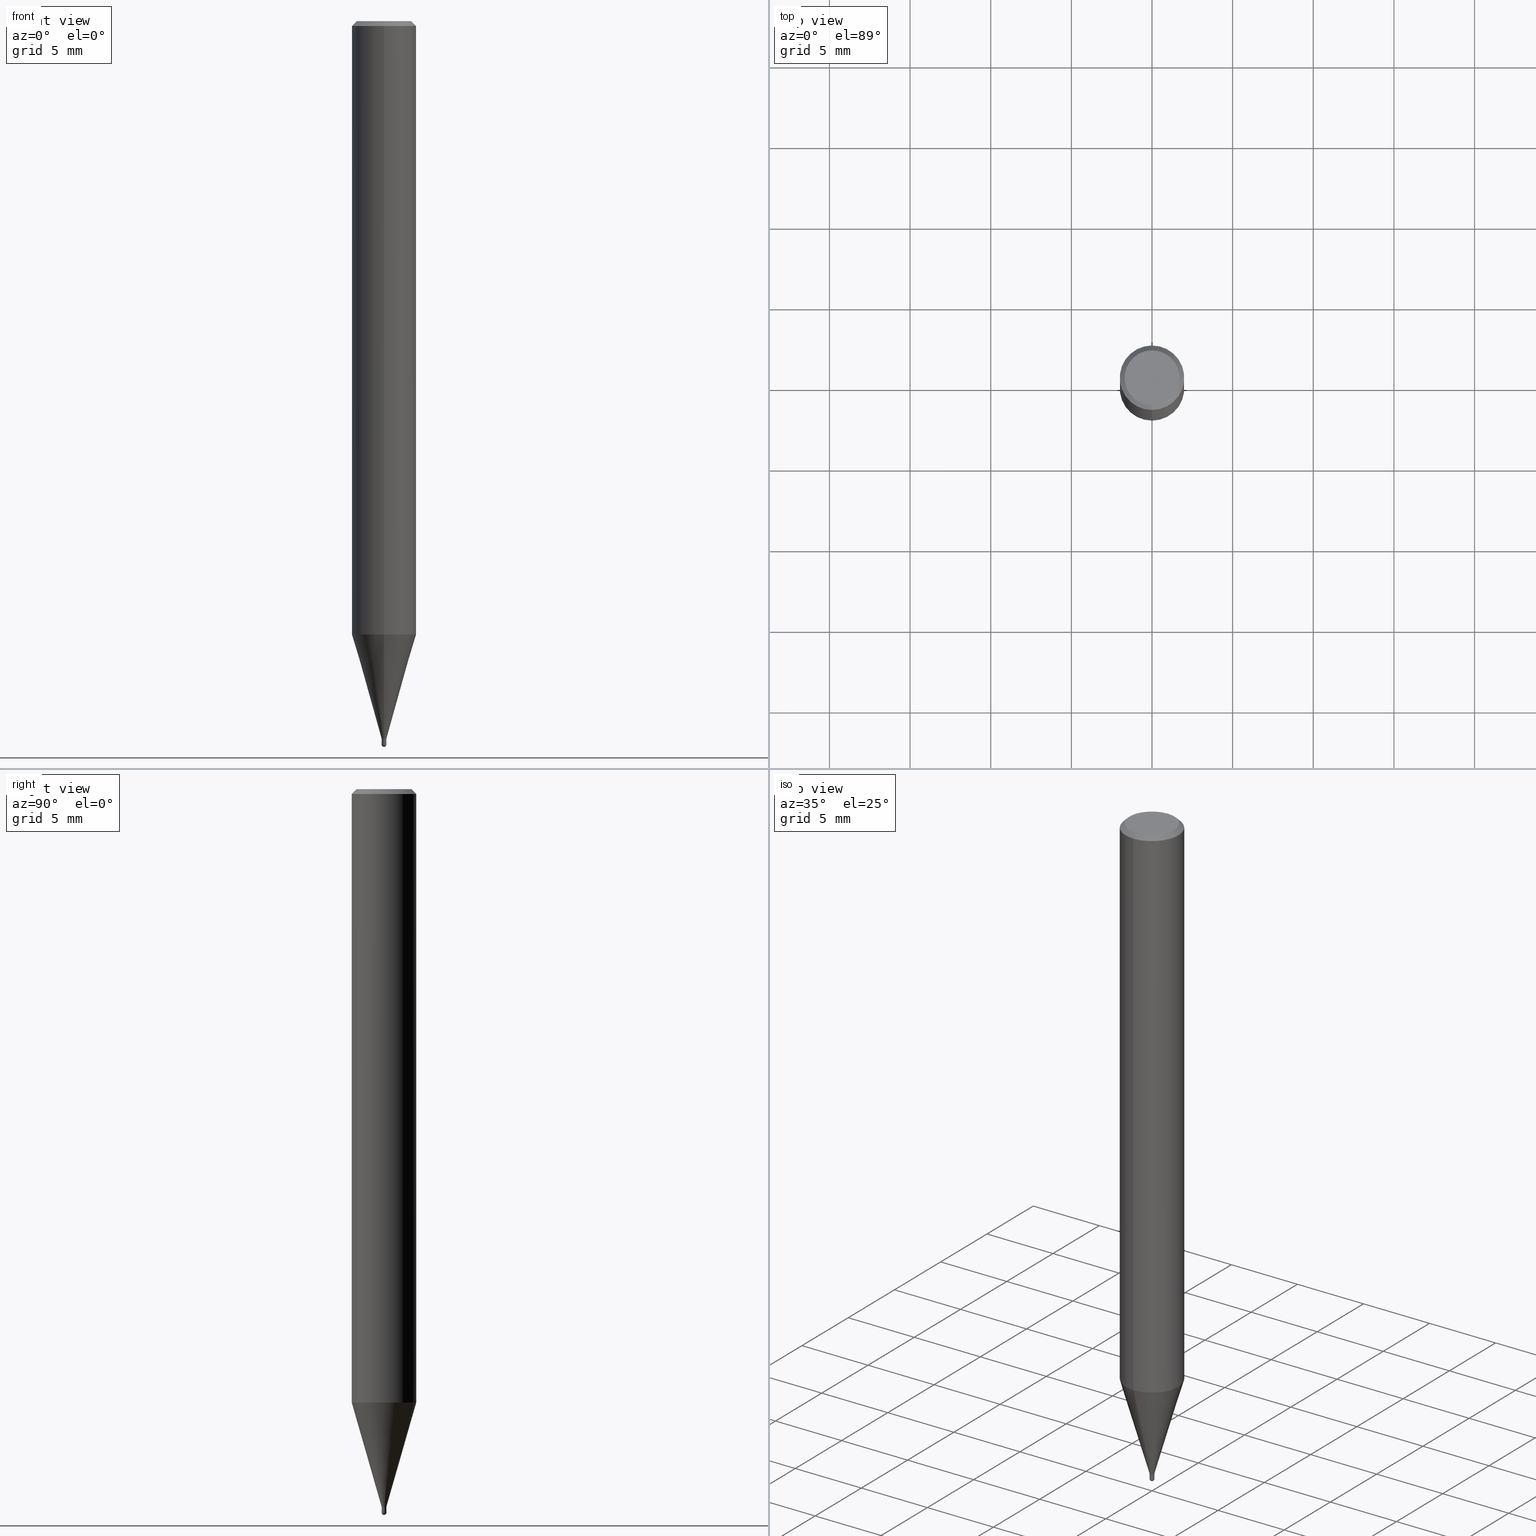
[diagram: canonical four-view strip — front | top / right | iso, engineering-drawing reading convention]
A machine part, canonical four-view strip (front | top / right | iso — engineering-drawing reading convention). The complete STEP part file that produces these views, byte-faithful:
ISO-10303-21;
HEADER;
FILE_DESCRIPTION(('no description'),'unknown implementation level');
FILE_NAME('HSLB2003-005-Huellk.stp','  ',('CIMSOURCE GmbH'),('CADClick - KiM GmbH - www.kimweb.de'),'unknown preprocess','ACIS','unknown authorization');
FILE_SCHEMA(('automotive_design'));
ENDSEC;
DATA;
#1=MECHANICAL_DESIGN_GEOMETRIC_PRESENTATION_REPRESENTATION(' ',(#14,#15,#16,#17,#18,#19,#20,#21,#22,#23,#24,#25,#26,#27,#28,#29,#30,#31,#32,#33,#34,#35,#36,#37,#38,#39,#40,#41,#42,#43,#44,#45,#46,#47,#48,#49,#50,#51,#52,#53,#54,#55,#56,#57,#58,#59,#60,#61,#62,#63,#64,#65,#66,#67,#68,#69,#70,#71,#72,#73,#74),#10);
#2=PRODUCT_DEFINITION_CONTEXT('',#75,'design');
#3=APPLICATION_PROTOCOL_DEFINITION('INTERNATIONAL STANDARD','automotive_design',1994,#75);
#4=PRODUCT_CATEGORY_RELATIONSHIP('NONE','NONE',#76,#77);
#5=SHAPE_DEFINITION_REPRESENTATION(#78,#79);
#6=PRODUCT_DEFINITION_CONTEXT('',#80,'design');
#7=APPLICATION_PROTOCOL_DEFINITION('INTERNATIONAL STANDARD','automotive_design',1994,#80);
#8=PRODUCT_CATEGORY_RELATIONSHIP('NONE','NONE',#81,#82);
#9=SHAPE_DEFINITION_REPRESENTATION(#83,#84);
#10= (GEOMETRIC_REPRESENTATION_CONTEXT(3)GLOBAL_UNCERTAINTY_ASSIGNED_CONTEXT((#87))GLOBAL_UNIT_ASSIGNED_CONTEXT((#89,#90,#91))REPRESENTATION_CONTEXT('NONE','WORKSPACE'));
#14=STYLED_ITEM('',(#93),#94);
#15=STYLED_ITEM('',(#95),#96);
#16=STYLED_ITEM('',(#97),#98);
#17=STYLED_ITEM('',(#99),#100);
#18=STYLED_ITEM('',(#101),#102);
#19=STYLED_ITEM('',(#103),#104);
#20=STYLED_ITEM('',(#105),#106);
#21=STYLED_ITEM('',(#107),#108);
#22=STYLED_ITEM('',(#109),#110);
#23=STYLED_ITEM('',(#111),#112);
#24=STYLED_ITEM('',(#113),#114);
#25=STYLED_ITEM('',(#115),#116);
#26=STYLED_ITEM('',(#117),#118);
#27=STYLED_ITEM('',(#119),#120);
#28=STYLED_ITEM('',(#121),#122);
#29=STYLED_ITEM('',(#123),#124);
#30=STYLED_ITEM('',(#125),#126);
#31=STYLED_ITEM('',(#127),#128);
#32=STYLED_ITEM('',(#129),#130);
#33=STYLED_ITEM('',(#131),#132);
#34=STYLED_ITEM('',(#133),#134);
#35=STYLED_ITEM('',(#135),#136);
#36=STYLED_ITEM('',(#137),#138);
#37=STYLED_ITEM('',(#139),#140);
#38=STYLED_ITEM('',(#141),#142);
#39=STYLED_ITEM('',(#143),#144);
#40=STYLED_ITEM('',(#145),#146);
#41=STYLED_ITEM('',(#147),#148);
#42=STYLED_ITEM('',(#149),#150);
#43=STYLED_ITEM('',(#151),#152);
#44=STYLED_ITEM('',(#153),#154);
#45=STYLED_ITEM('',(#155),#156);
#46=STYLED_ITEM('',(#157),#158);
#47=STYLED_ITEM('',(#159),#160);
#48=STYLED_ITEM('',(#161),#162);
#49=STYLED_ITEM('',(#163),#164);
#50=STYLED_ITEM('',(#165),#166);
#51=STYLED_ITEM('',(#167),#168);
#52=STYLED_ITEM('',(#169),#170);
#53=STYLED_ITEM('',(#171),#172);
#54=STYLED_ITEM('',(#173),#174);
#55=STYLED_ITEM('',(#175),#176);
#56=STYLED_ITEM('',(#177),#178);
#57=STYLED_ITEM('',(#179),#180);
#58=STYLED_ITEM('',(#181),#182);
#59=STYLED_ITEM('',(#183),#184);
#60=STYLED_ITEM('',(#185),#186);
#61=STYLED_ITEM('',(#187),#188);
#62=STYLED_ITEM('',(#189),#190);
#63=STYLED_ITEM('',(#191),#192);
#64=STYLED_ITEM('',(#193),#194);
#65=STYLED_ITEM('',(#195),#196);
#66=STYLED_ITEM('',(#197),#198);
#67=STYLED_ITEM('',(#199),#200);
#68=STYLED_ITEM('',(#201),#202);
#69=STYLED_ITEM('',(#203),#204);
#70=STYLED_ITEM('',(#205),#206);
#71=STYLED_ITEM('',(#207),#208);
#72=STYLED_ITEM('',(#209),#210);
#73=STYLED_ITEM('',(#211),#212);
#74=STYLED_ITEM('',(#213),#214);
#75=APPLICATION_CONTEXT(' ');
#76=PRODUCT_CATEGORY('part','NONE');
#77=PRODUCT_RELATED_PRODUCT_CATEGORY('detail',' ',(#215));
#78=PRODUCT_DEFINITION_SHAPE('NONE','NONE',#216);
#79=ADVANCED_BREP_SHAPE_REPRESENTATION('1',(#170,#217),#10);
#80=APPLICATION_CONTEXT(' ');
#81=PRODUCT_CATEGORY('part','NONE');
#82=PRODUCT_RELATED_PRODUCT_CATEGORY('detail',' ',(#218));
#83=PRODUCT_DEFINITION_SHAPE('NONE','NONE',#219);
#84=ADVANCED_BREP_SHAPE_REPRESENTATION('2',(#164,#220),#10);
#87=UNCERTAINTY_MEASURE_WITH_UNIT(LENGTH_MEASURE(1.0E-006),#89,'','');
#89= (CONVERSION_BASED_UNIT('MILLIMETRE',#223)LENGTH_UNIT()NAMED_UNIT(#226));
#90= (NAMED_UNIT(#228)PLANE_ANGLE_UNIT()SI_UNIT($,.RADIAN.));
#91= (NAMED_UNIT(#228)SOLID_ANGLE_UNIT()SI_UNIT($,.STERADIAN.));
#93=PRESENTATION_STYLE_ASSIGNMENT((#234));
#94=VERTEX_POINT('',#235);
#95=PRESENTATION_STYLE_ASSIGNMENT((#236));
#96=VERTEX_POINT('',#237);
#97=PRESENTATION_STYLE_ASSIGNMENT((#238));
#98=EDGE_CURVE('',#154,#96,#239,.T.);
#99=PRESENTATION_STYLE_ASSIGNMENT((#240));
#100=EDGE_CURVE('',#96,#154,#241,.T.);
#101=PRESENTATION_STYLE_ASSIGNMENT((#242));
#102=VERTEX_POINT('',#243);
#103=PRESENTATION_STYLE_ASSIGNMENT((#244));
#104=EDGE_CURVE('',#134,#126,#245,.T.);
#105=PRESENTATION_STYLE_ASSIGNMENT((#246));
#106=EDGE_CURVE('',#208,#154,#247,.T.);
#107=PRESENTATION_STYLE_ASSIGNMENT((#248));
#108=ADVANCED_FACE('',(#249),#250,.T.);
#109=PRESENTATION_STYLE_ASSIGNMENT((#251));
#110=EDGE_CURVE('',#214,#182,#252,.T.);
#111=PRESENTATION_STYLE_ASSIGNMENT((#253));
#112=VERTEX_POINT('',#254);
#113=PRESENTATION_STYLE_ASSIGNMENT((#255));
#114=ADVANCED_FACE('',(#256),#257,.T.);
#115=PRESENTATION_STYLE_ASSIGNMENT((#258));
#116=VERTEX_POINT('',#259);
#117=PRESENTATION_STYLE_ASSIGNMENT((#260));
#118=ADVANCED_FACE('',(#261),#262,.T.);
#119=PRESENTATION_STYLE_ASSIGNMENT((#263));
#120=EDGE_CURVE('',#94,#180,#264,.T.);
#121=PRESENTATION_STYLE_ASSIGNMENT((#265));
#122=EDGE_CURVE('',#166,#112,#266,.T.);
#123=PRESENTATION_STYLE_ASSIGNMENT((#267));
#124=EDGE_CURVE('',#116,#128,#268,.T.);
#125=PRESENTATION_STYLE_ASSIGNMENT((#269));
#126=VERTEX_POINT('',#270);
#127=PRESENTATION_STYLE_ASSIGNMENT((#271));
#128=VERTEX_POINT('',#272);
#129=PRESENTATION_STYLE_ASSIGNMENT((#273));
#130=ADVANCED_FACE('',(#274),#275,.T.);
#131=PRESENTATION_STYLE_ASSIGNMENT((#276));
#132=EDGE_CURVE('',#166,#180,#277,.T.);
#133=PRESENTATION_STYLE_ASSIGNMENT((#278));
#134=VERTEX_POINT('',#279);
#135=PRESENTATION_STYLE_ASSIGNMENT((#280));
#136=EDGE_CURVE('',#208,#194,#281,.T.);
#137=PRESENTATION_STYLE_ASSIGNMENT((#282));
#138=ADVANCED_FACE('',(#283),#284,.T.);
#139=PRESENTATION_STYLE_ASSIGNMENT((#285));
#140=ADVANCED_FACE('',(#286),#287,.T.);
#141=PRESENTATION_STYLE_ASSIGNMENT((#288));
#142=EDGE_CURVE('',#134,#160,#289,.T.);
#143=PRESENTATION_STYLE_ASSIGNMENT((#290));
#144=EDGE_CURVE('',#112,#166,#291,.T.);
#145=PRESENTATION_STYLE_ASSIGNMENT((#292));
#146=EDGE_CURVE('',#180,#94,#293,.T.);
#147=PRESENTATION_STYLE_ASSIGNMENT((#294));
#148=EDGE_CURVE('',#102,#160,#295,.T.);
#149=PRESENTATION_STYLE_ASSIGNMENT((#296));
#150=EDGE_CURVE('',#102,#126,#297,.T.);
#151=PRESENTATION_STYLE_ASSIGNMENT((#298));
#152=EDGE_CURVE('',#112,#128,#299,.T.);
#153=PRESENTATION_STYLE_ASSIGNMENT((#300));
#154=VERTEX_POINT('',#301);
#155=PRESENTATION_STYLE_ASSIGNMENT((#302));
#156=ADVANCED_FACE('',(#303),#304,.T.);
#157=PRESENTATION_STYLE_ASSIGNMENT((#305));
#158=EDGE_CURVE('',#182,#214,#306,.T.);
#159=PRESENTATION_STYLE_ASSIGNMENT((#307));
#160=VERTEX_POINT('',#308);
#161=PRESENTATION_STYLE_ASSIGNMENT((#309));
#162=ADVANCED_FACE('',(#310),#311,.T.);
#163=PRESENTATION_STYLE_ASSIGNMENT((#312));
#164=MANIFOLD_SOLID_BREP('2',#313);
#165=PRESENTATION_STYLE_ASSIGNMENT((#314));
#166=VERTEX_POINT('',#315);
#167=PRESENTATION_STYLE_ASSIGNMENT((#316));
#168=ADVANCED_FACE('',(#317),#318,.T.);
#169=PRESENTATION_STYLE_ASSIGNMENT((#319));
#170=MANIFOLD_SOLID_BREP('1',#320);
#171=PRESENTATION_STYLE_ASSIGNMENT((#321));
#172=EDGE_CURVE('',#194,#208,#322,.T.);
#173=PRESENTATION_STYLE_ASSIGNMENT((#323));
#174=ADVANCED_FACE('',(#324,#325),#326,.T.);
#175=PRESENTATION_STYLE_ASSIGNMENT((#327));
#176=ADVANCED_FACE('',(#328),#329,.T.);
#177=PRESENTATION_STYLE_ASSIGNMENT((#330));
#178=EDGE_CURVE('',#116,#166,#331,.T.);
#179=PRESENTATION_STYLE_ASSIGNMENT((#332));
#180=VERTEX_POINT('',#333);
#181=PRESENTATION_STYLE_ASSIGNMENT((#334));
#182=VERTEX_POINT('',#335);
#183=PRESENTATION_STYLE_ASSIGNMENT((#336));
#184=EDGE_CURVE('',#134,#160,#337,.T.);
#185=PRESENTATION_STYLE_ASSIGNMENT((#338));
#186=ADVANCED_FACE('',(#339),#340,.T.);
#187=PRESENTATION_STYLE_ASSIGNMENT((#341));
#188=EDGE_CURVE('',#94,#112,#342,.T.);
#189=PRESENTATION_STYLE_ASSIGNMENT((#343));
#190=ADVANCED_FACE('',(#344),#345,.T.);
#191=PRESENTATION_STYLE_ASSIGNMENT((#346));
#192=ADVANCED_FACE('',(#347),#348,.T.);
#193=PRESENTATION_STYLE_ASSIGNMENT((#349));
#194=VERTEX_POINT('',#350);
#195=PRESENTATION_STYLE_ASSIGNMENT((#351));
#196=EDGE_CURVE('',#154,#214,#352,.T.);
#197=PRESENTATION_STYLE_ASSIGNMENT((#353));
#198=EDGE_CURVE('',#128,#116,#354,.T.);
#199=PRESENTATION_STYLE_ASSIGNMENT((#355));
#200=EDGE_CURVE('',#160,#134,#356,.T.);
#201=PRESENTATION_STYLE_ASSIGNMENT((#357));
#202=ADVANCED_FACE('',(#358),#359,.T.);
#203=PRESENTATION_STYLE_ASSIGNMENT((#360));
#204=ADVANCED_FACE('',(#361),#362,.T.);
#205=PRESENTATION_STYLE_ASSIGNMENT((#363));
#206=EDGE_CURVE('',#126,#102,#364,.T.);
#207=PRESENTATION_STYLE_ASSIGNMENT((#365));
#208=VERTEX_POINT('',#366);
#209=PRESENTATION_STYLE_ASSIGNMENT((#367));
#210=EDGE_CURVE('',#182,#96,#368,.T.);
#211=PRESENTATION_STYLE_ASSIGNMENT((#369));
#212=EDGE_CURVE('',#96,#194,#370,.T.);
#213=PRESENTATION_STYLE_ASSIGNMENT((#371));
#214=VERTEX_POINT('',#372);
#215=PRODUCT('1','1','PART-1-DESC',(#373));
#216=PRODUCT_DEFINITION('NONE','NONE',#374,#2);
#217=AXIS2_PLACEMENT_3D('',#375,#376,#377);
#218=PRODUCT('2','2','PART-2-DESC',(#378));
#219=PRODUCT_DEFINITION('NONE','NONE',#379,#6);
#220=AXIS2_PLACEMENT_3D('',#380,#381,#382);
#223=LENGTH_MEASURE_WITH_UNIT(LENGTH_MEASURE(1.0),#383);
#226=DIMENSIONAL_EXPONENTS(1.0,0.0,0.0,0.0,0.0,0.0,0.0);
#228=DIMENSIONAL_EXPONENTS(0.0,0.0,0.0,0.0,0.0,0.0,0.0);
#234=POINT_STYLE(' ',#384,POSITIVE_LENGTH_MEASURE(1.0E-006),#385);
#235=CARTESIAN_POINT('',(0.0,1.99995,-38.031));
#236=POINT_STYLE(' ',#386,POSITIVE_LENGTH_MEASURE(1.0E-006),#387);
#237=CARTESIAN_POINT('',(2.44921270764475E-016,-2.0,-0.299999999999997));
#238=CURVE_STYLE('',#388,POSITIVE_LENGTH_MEASURE(1.0E-006),#389);
#239=CIRCLE('',#390,2.0);
#240=CURVE_STYLE('',#391,POSITIVE_LENGTH_MEASURE(1.0E-006),#392);
#241=CIRCLE('',#393,2.0);
#242=POINT_STYLE(' ',#394,POSITIVE_LENGTH_MEASURE(1.0E-006),#395);
#243=CARTESIAN_POINT('',(0.0,0.1499,-44.76));
#244=CURVE_STYLE('',#396,POSITIVE_LENGTH_MEASURE(1.0E-006),#397);
#245=LINE('',#398,#399);
#246=CURVE_STYLE('',#400,POSITIVE_LENGTH_MEASURE(1.0E-006),#401);
#247=LINE('',#402,#403);
#248=SURFACE_STYLE_USAGE(.BOTH.,#404);
#249=FACE_OUTER_BOUND('',#405,.T.);
#250=CONICAL_SURFACE('',#406,1.85,0.785398163397453);
#251=CURVE_STYLE('',#407,POSITIVE_LENGTH_MEASURE(1.0E-006),#408);
#252=CIRCLE('',#409,2.0);
#253=POINT_STYLE(' ',#410,POSITIVE_LENGTH_MEASURE(1.0E-006),#411);
#254=CARTESIAN_POINT('',(0.0,0.14495,-44.5));
#255=SURFACE_STYLE_USAGE(.BOTH.,#412);
#256=FACE_OUTER_BOUND('',#413,.T.);
#257=SPHERICAL_SURFACE('',#414,0.15);
#258=POINT_STYLE(' ',#415,POSITIVE_LENGTH_MEASURE(1.0E-006),#416);
#259=CARTESIAN_POINT('',(1.77506690986554E-017,-0.14495,-44.76));
#260=SURFACE_STYLE_USAGE(.BOTH.,#417);
#261=FACE_OUTER_BOUND('',#418,.T.);
#262=PLANE('',#419);
#263=CURVE_STYLE('',#420,POSITIVE_LENGTH_MEASURE(1.0E-006),#421);
#264=CIRCLE('',#422,1.99995);
#265=CURVE_STYLE('',#423,POSITIVE_LENGTH_MEASURE(1.0E-006),#424);
#266=CIRCLE('',#425,0.14495);
#267=CURVE_STYLE('',#426,POSITIVE_LENGTH_MEASURE(1.0E-006),#427);
#268=CIRCLE('',#428,0.14495);
#269=POINT_STYLE(' ',#429,POSITIVE_LENGTH_MEASURE(1.0E-006),#430);
#270=CARTESIAN_POINT('',(1.83568492437974E-017,-0.1499,-44.76));
#271=POINT_STYLE(' ',#431,POSITIVE_LENGTH_MEASURE(1.0E-006),#432);
#272=CARTESIAN_POINT('',(0.0,0.14495,-44.76));
#273=SURFACE_STYLE_USAGE(.BOTH.,#433);
#274=FACE_OUTER_BOUND('',#434,.T.);
#275=PLANE('',#435);
#276=CURVE_STYLE('',#436,POSITIVE_LENGTH_MEASURE(1.0E-006),#437);
#277=LINE('',#438,#439);
#278=POINT_STYLE(' ',#440,POSITIVE_LENGTH_MEASURE(1.0E-006),#441);
#279=CARTESIAN_POINT('',(1.83690953073356E-017,-0.15,-44.85));
#280=CURVE_STYLE('',#442,POSITIVE_LENGTH_MEASURE(1.0E-006),#443);
#281=CIRCLE('',#444,1.7);
#282=SURFACE_STYLE_USAGE(.BOTH.,#445);
#283=FACE_OUTER_BOUND('',#446,.T.);
#284=CYLINDRICAL_SURFACE('',#447,2.0);
#285=SURFACE_STYLE_USAGE(.BOTH.,#448);
#286=FACE_OUTER_BOUND('',#449,.T.);
#287=PLANE('',#450);
#288=CURVE_STYLE('',#451,POSITIVE_LENGTH_MEASURE(1.0E-006),#452);
#289=CIRCLE('',#453,0.15);
#290=CURVE_STYLE('',#454,POSITIVE_LENGTH_MEASURE(1.0E-006),#455);
#291=CIRCLE('',#456,0.14495);
#292=CURVE_STYLE('',#457,POSITIVE_LENGTH_MEASURE(1.0E-006),#458);
#293=CIRCLE('',#459,1.99995);
#294=CURVE_STYLE('',#460,POSITIVE_LENGTH_MEASURE(1.0E-006),#461);
#295=LINE('',#462,#463);
#296=CURVE_STYLE('',#464,POSITIVE_LENGTH_MEASURE(1.0E-006),#465);
#297=CIRCLE('',#466,0.1499);
#298=CURVE_STYLE('',#467,POSITIVE_LENGTH_MEASURE(1.0E-006),#468);
#299=LINE('',#469,#470);
#300=POINT_STYLE(' ',#471,POSITIVE_LENGTH_MEASURE(1.0E-006),#472);
#301=CARTESIAN_POINT('',(0.0,2.0,-0.299999999999997));
#302=SURFACE_STYLE_USAGE(.BOTH.,#473);
#303=FACE_OUTER_BOUND('',#474,.T.);
#304=CYLINDRICAL_SURFACE('',#475,2.0);
#305=CURVE_STYLE('',#476,POSITIVE_LENGTH_MEASURE(1.0E-006),#477);
#306=CIRCLE('',#478,2.0);
#307=POINT_STYLE(' ',#479,POSITIVE_LENGTH_MEASURE(1.0E-006),#480);
#308=CARTESIAN_POINT('',(0.0,0.15,-44.85));
#309=SURFACE_STYLE_USAGE(.BOTH.,#481);
#310=FACE_OUTER_BOUND('',#482,.T.);
#311=CONICAL_SURFACE('',#483,0.14995,0.00111111065386396);
#312=SURFACE_STYLE_USAGE(.BOTH.,#484);
#313=CLOSED_SHELL('',(#192,#162,#130,#168,#114));
#314=POINT_STYLE(' ',#485,POSITIVE_LENGTH_MEASURE(1.0E-006),#486);
#315=CARTESIAN_POINT('',(1.77506690986553E-017,-0.14495,-44.5));
#316=SURFACE_STYLE_USAGE(.BOTH.,#487);
#317=FACE_OUTER_BOUND('',#488,.T.);
#318=CONICAL_SURFACE('',#489,0.14995,0.00111111065386396);
#319=SURFACE_STYLE_USAGE(.BOTH.,#490);
#320=CLOSED_SHELL('',(#202,#190,#156,#108,#174,#118,#176,#138,#204,#186,#140));
#321=CURVE_STYLE('',#491,POSITIVE_LENGTH_MEASURE(1.0E-006),#492);
#322=CIRCLE('',#493,1.7);
#323=SURFACE_STYLE_USAGE(.BOTH.,#494);
#324=FACE_OUTER_BOUND('',#495,.T.);
#325=FACE_BOUND('',#496,.T.);
#326=PLANE('',#497);
#327=SURFACE_STYLE_USAGE(.BOTH.,#498);
#328=FACE_OUTER_BOUND('',#499,.T.);
#329=CONICAL_SURFACE('',#500,1.85,0.785398163397453);
#330=CURVE_STYLE('',#501,POSITIVE_LENGTH_MEASURE(1.0E-006),#502);
#331=LINE('',#503,#504);
#332=POINT_STYLE(' ',#505,POSITIVE_LENGTH_MEASURE(1.0E-006),#506);
#333=CARTESIAN_POINT('',(2.44915147732706E-016,-1.99995,-38.031));
#334=POINT_STYLE(' ',#507,POSITIVE_LENGTH_MEASURE(1.0E-006),#508);
#335=CARTESIAN_POINT('',(2.44921270764475E-016,-2.0,-38.031));
#336=CURVE_STYLE('',#509,POSITIVE_LENGTH_MEASURE(1.0E-006),#510);
#337=CIRCLE('',#511,0.15);
#338=SURFACE_STYLE_USAGE(.BOTH.,#512);
#339=FACE_OUTER_BOUND('',#513,.T.);
#340=CYLINDRICAL_SURFACE('',#514,0.14495);
#341=CURVE_STYLE('',#515,POSITIVE_LENGTH_MEASURE(1.0E-006),#516);
#342=LINE('',#517,#518);
#343=SURFACE_STYLE_USAGE(.BOTH.,#519);
#344=FACE_OUTER_BOUND('',#520,.T.);
#345=CONICAL_SURFACE('',#521,1.07245,0.279258979430111);
#346=SURFACE_STYLE_USAGE(.BOTH.,#522);
#347=FACE_OUTER_BOUND('',#523,.T.);
#348=SPHERICAL_SURFACE('',#524,0.15);
#349=POINT_STYLE(' ',#525,POSITIVE_LENGTH_MEASURE(1.0E-006),#526);
#350=CARTESIAN_POINT('',(2.08183080149804E-016,-1.7,0.0));
#351=CURVE_STYLE('',#527,POSITIVE_LENGTH_MEASURE(1.0E-006),#528);
#352=LINE('',#529,#530);
#353=CURVE_STYLE('',#531,POSITIVE_LENGTH_MEASURE(1.0E-006),#532);
#354=CIRCLE('',#533,0.14495);
#355=CURVE_STYLE('',#534,POSITIVE_LENGTH_MEASURE(1.0E-006),#535);
#356=CIRCLE('',#536,0.15);
#357=SURFACE_STYLE_USAGE(.BOTH.,#537);
#358=FACE_OUTER_BOUND('',#538,.T.);
#359=CYLINDRICAL_SURFACE('',#539,0.14495);
#360=SURFACE_STYLE_USAGE(.BOTH.,#540);
#361=FACE_OUTER_BOUND('',#541,.T.);
#362=CONICAL_SURFACE('',#542,1.07245,0.279258979430111);
#363=CURVE_STYLE('',#543,POSITIVE_LENGTH_MEASURE(1.0E-006),#544);
#364=CIRCLE('',#545,0.1499);
#365=POINT_STYLE(' ',#546,POSITIVE_LENGTH_MEASURE(1.0E-006),#547);
#366=CARTESIAN_POINT('',(0.0,1.7,0.0));
#367=CURVE_STYLE('',#548,POSITIVE_LENGTH_MEASURE(1.0E-006),#549);
#368=LINE('',#550,#551);
#369=CURVE_STYLE('',#552,POSITIVE_LENGTH_MEASURE(1.0E-006),#553);
#370=LINE('',#554,#555);
#371=POINT_STYLE(' ',#556,POSITIVE_LENGTH_MEASURE(1.0E-006),#557);
#372=CARTESIAN_POINT('',(0.0,2.0,-38.031));
#373=PRODUCT_CONTEXT('',#75,'mechanical');
#374=PRODUCT_DEFINITION_FORMATION_WITH_SPECIFIED_SOURCE(' ','NONE',#215,.NOT_KNOWN.);
#375=CARTESIAN_POINT('',(0.0,0.0,0.0));
#376=DIRECTION('',(0.0,0.0,1.0));
#377=DIRECTION('',(1.0,0.0,0.0));
#378=PRODUCT_CONTEXT('',#80,'mechanical');
#379=PRODUCT_DEFINITION_FORMATION_WITH_SPECIFIED_SOURCE(' ','NONE',#218,.NOT_KNOWN.);
#380=CARTESIAN_POINT('',(0.0,0.0,0.0));
#381=DIRECTION('',(0.0,0.0,1.0));
#382=DIRECTION('',(1.0,0.0,0.0));
#383= (NAMED_UNIT(#226)LENGTH_UNIT()SI_UNIT(.MILLI.,.METRE.));
#384=PRE_DEFINED_MARKER('');
#385=COLOUR_RGB('',0.498039215803146,0.498039215803146,0.498039215803146);
#386=PRE_DEFINED_MARKER('');
#387=COLOUR_RGB('',0.498039215803146,0.498039215803146,0.498039215803146);
#388=DRAUGHTING_PRE_DEFINED_CURVE_FONT('continuous');
#389=COLOUR_RGB('',0.498039215803146,0.498039215803146,0.498039215803146);
#390=AXIS2_PLACEMENT_3D('',#559,#560,#561);
#391=DRAUGHTING_PRE_DEFINED_CURVE_FONT('continuous');
#392=COLOUR_RGB('',0.498039215803146,0.498039215803146,0.498039215803146);
#393=AXIS2_PLACEMENT_3D('',#562,#563,#564);
#394=PRE_DEFINED_MARKER('');
#395=COLOUR_RGB('',0.800000011920929,0.800000011920929,0.800000011920929);
#396=DRAUGHTING_PRE_DEFINED_CURVE_FONT('continuous');
#397=COLOUR_RGB('',0.800000011920929,0.800000011920929,0.800000011920929);
#398=CARTESIAN_POINT('',(1.83629722755665E-017,-0.14995,-44.805));
#399=VECTOR('',#565,1.0);
#400=DRAUGHTING_PRE_DEFINED_CURVE_FONT('continuous');
#401=COLOUR_RGB('',0.498039215803146,0.498039215803146,0.498039215803146);
#402=CARTESIAN_POINT('',(-2.2655217545714E-016,1.85,-0.149999999999999));
#403=VECTOR('',#566,1.0);
#404=SURFACE_SIDE_STYLE('',(#567));
#405=EDGE_LOOP('',(#568,#569,#570,#571));
#406=AXIS2_PLACEMENT_3D('',#572,#573,#574);
#407=DRAUGHTING_PRE_DEFINED_CURVE_FONT('continuous');
#408=COLOUR_RGB('',0.498039215803146,0.498039215803146,0.498039215803146);
#409=AXIS2_PLACEMENT_3D('',#575,#576,#577);
#410=PRE_DEFINED_MARKER('');
#411=COLOUR_RGB('',0.498039215803146,0.498039215803146,0.498039215803146);
#412=SURFACE_SIDE_STYLE('',(#578));
#413=EDGE_LOOP('',(#579,#580));
#414=AXIS2_PLACEMENT_3D('',#581,#582,#583);
#415=PRE_DEFINED_MARKER('');
#416=COLOUR_RGB('',0.498039215803146,0.498039215803146,0.498039215803146);
#417=SURFACE_SIDE_STYLE('',(#584));
#418=EDGE_LOOP('',(#585,#586));
#419=AXIS2_PLACEMENT_3D('',#587,#588,#589);
#420=DRAUGHTING_PRE_DEFINED_CURVE_FONT('continuous');
#421=COLOUR_RGB('',0.498039215803146,0.498039215803146,0.498039215803146);
#422=AXIS2_PLACEMENT_3D('',#590,#591,#592);
#423=DRAUGHTING_PRE_DEFINED_CURVE_FONT('continuous');
#424=COLOUR_RGB('',0.498039215803146,0.498039215803146,0.498039215803146);
#425=AXIS2_PLACEMENT_3D('',#593,#594,#595);
#426=DRAUGHTING_PRE_DEFINED_CURVE_FONT('continuous');
#427=COLOUR_RGB('',0.498039215803146,0.498039215803146,0.498039215803146);
#428=AXIS2_PLACEMENT_3D('',#596,#597,#598);
#429=PRE_DEFINED_MARKER('');
#430=COLOUR_RGB('',0.800000011920929,0.800000011920929,0.800000011920929);
#431=PRE_DEFINED_MARKER('');
#432=COLOUR_RGB('',0.498039215803146,0.498039215803146,0.498039215803146);
#433=SURFACE_SIDE_STYLE('',(#599));
#434=EDGE_LOOP('',(#600,#601));
#435=AXIS2_PLACEMENT_3D('',#602,#603,#604);
#436=DRAUGHTING_PRE_DEFINED_CURVE_FONT('continuous');
#437=COLOUR_RGB('',0.498039215803146,0.498039215803146,0.498039215803146);
#438=CARTESIAN_POINT('',(1.31332908415681E-016,-1.07245,-41.2655));
#439=VECTOR('',#605,1.0);
#440=PRE_DEFINED_MARKER('');
#441=COLOUR_RGB('',0.800000011920929,0.800000011920929,0.800000011920929);
#442=DRAUGHTING_PRE_DEFINED_CURVE_FONT('continuous');
#443=COLOUR_RGB('',0.498039215803146,0.498039215803146,0.498039215803146);
#444=AXIS2_PLACEMENT_3D('',#606,#607,#608);
#445=SURFACE_SIDE_STYLE('',(#609));
#446=EDGE_LOOP('',(#610,#611,#612,#613));
#447=AXIS2_PLACEMENT_3D('',#614,#615,#616);
#448=SURFACE_SIDE_STYLE('',(#617));
#449=EDGE_LOOP('',(#618,#619));
#450=AXIS2_PLACEMENT_3D('',#620,#621,#622);
#451=DRAUGHTING_PRE_DEFINED_CURVE_FONT('continuous');
#452=COLOUR_RGB('',0.800000011920929,0.800000011920929,0.800000011920929);
#453=AXIS2_PLACEMENT_3D('',#623,#624,#625);
#454=DRAUGHTING_PRE_DEFINED_CURVE_FONT('continuous');
#455=COLOUR_RGB('',0.498039215803146,0.498039215803146,0.498039215803146);
#456=AXIS2_PLACEMENT_3D('',#626,#627,#628);
#457=DRAUGHTING_PRE_DEFINED_CURVE_FONT('continuous');
#458=COLOUR_RGB('',0.498039215803146,0.498039215803146,0.498039215803146);
#459=AXIS2_PLACEMENT_3D('',#629,#630,#631);
#460=DRAUGHTING_PRE_DEFINED_CURVE_FONT('continuous');
#461=COLOUR_RGB('',0.800000011920929,0.800000011920929,0.800000011920929);
#462=CARTESIAN_POINT('',(-1.83629722755665E-017,0.14995,-44.805));
#463=VECTOR('',#632,1.0);
#464=DRAUGHTING_PRE_DEFINED_CURVE_FONT('continuous');
#465=COLOUR_RGB('',0.800000011920929,0.800000011920929,0.800000011920929);
#466=AXIS2_PLACEMENT_3D('',#633,#634,#635);
#467=DRAUGHTING_PRE_DEFINED_CURVE_FONT('continuous');
#468=COLOUR_RGB('',0.498039215803146,0.498039215803146,0.498039215803146);
#469=CARTESIAN_POINT('',(-1.77506690986554E-017,0.14495,-44.63));
#470=VECTOR('',#636,1.0);
#471=PRE_DEFINED_MARKER('');
#472=COLOUR_RGB('',0.498039215803146,0.498039215803146,0.498039215803146);
#473=SURFACE_SIDE_STYLE('',(#637));
#474=EDGE_LOOP('',(#638,#639,#640,#641));
#475=AXIS2_PLACEMENT_3D('',#642,#643,#644);
#476=DRAUGHTING_PRE_DEFINED_CURVE_FONT('continuous');
#477=COLOUR_RGB('',0.498039215803146,0.498039215803146,0.498039215803146);
#478=AXIS2_PLACEMENT_3D('',#645,#646,#647);
#479=PRE_DEFINED_MARKER('');
#480=COLOUR_RGB('',0.800000011920929,0.800000011920929,0.800000011920929);
#481=SURFACE_SIDE_STYLE('',(#648));
#482=EDGE_LOOP('',(#649,#650,#651,#652));
#483=AXIS2_PLACEMENT_3D('',#653,#654,#655);
#484=SURFACE_SIDE_STYLE('',(#656));
#485=PRE_DEFINED_MARKER('');
#486=COLOUR_RGB('',0.498039215803146,0.498039215803146,0.498039215803146);
#487=SURFACE_SIDE_STYLE('',(#657));
#488=EDGE_LOOP('',(#658,#659,#660,#661));
#489=AXIS2_PLACEMENT_3D('',#662,#663,#664);
#490=SURFACE_SIDE_STYLE('',(#665));
#491=DRAUGHTING_PRE_DEFINED_CURVE_FONT('continuous');
#492=COLOUR_RGB('',0.498039215803146,0.498039215803146,0.498039215803146);
#493=AXIS2_PLACEMENT_3D('',#666,#667,#668);
#494=SURFACE_SIDE_STYLE('',(#669));
#495=EDGE_LOOP('',(#670,#671));
#496=EDGE_LOOP('',(#672,#673));
#497=AXIS2_PLACEMENT_3D('',#674,#675,#676);
#498=SURFACE_SIDE_STYLE('',(#677));
#499=EDGE_LOOP('',(#678,#679,#680,#681));
#500=AXIS2_PLACEMENT_3D('',#682,#683,#684);
#501=DRAUGHTING_PRE_DEFINED_CURVE_FONT('continuous');
#502=COLOUR_RGB('',0.498039215803146,0.498039215803146,0.498039215803146);
#503=CARTESIAN_POINT('',(1.77506690986554E-017,-0.14495,-44.63));
#504=VECTOR('',#685,1.0);
#505=PRE_DEFINED_MARKER('');
#506=COLOUR_RGB('',0.498039215803146,0.498039215803146,0.498039215803146);
#507=PRE_DEFINED_MARKER('');
#508=COLOUR_RGB('',0.498039215803146,0.498039215803146,0.498039215803146);
#509=DRAUGHTING_PRE_DEFINED_CURVE_FONT('continuous');
#510=COLOUR_RGB('',0.800000011920929,0.800000011920929,0.800000011920929);
#511=AXIS2_PLACEMENT_3D('',#686,#687,#688);
#512=SURFACE_SIDE_STYLE('',(#689));
#513=EDGE_LOOP('',(#690,#691,#692,#693));
#514=AXIS2_PLACEMENT_3D('',#694,#695,#696);
#515=DRAUGHTING_PRE_DEFINED_CURVE_FONT('continuous');
#516=COLOUR_RGB('',0.498039215803146,0.498039215803146,0.498039215803146);
#517=CARTESIAN_POINT('',(-1.31332908415681E-016,1.07245,-41.2655));
#518=VECTOR('',#697,1.0);
#519=SURFACE_SIDE_STYLE('',(#698));
#520=EDGE_LOOP('',(#699,#700,#701,#702));
#521=AXIS2_PLACEMENT_3D('',#703,#704,#705);
#522=SURFACE_SIDE_STYLE('',(#706));
#523=EDGE_LOOP('',(#707,#708));
#524=AXIS2_PLACEMENT_3D('',#709,#710,#711);
#525=PRE_DEFINED_MARKER('');
#526=COLOUR_RGB('',0.498039215803146,0.498039215803146,0.498039215803146);
#527=DRAUGHTING_PRE_DEFINED_CURVE_FONT('continuous');
#528=COLOUR_RGB('',0.498039215803146,0.498039215803146,0.498039215803146);
#529=CARTESIAN_POINT('',(-2.44921270764475E-016,2.0,-19.1655));
#530=VECTOR('',#712,1.0);
#531=DRAUGHTING_PRE_DEFINED_CURVE_FONT('continuous');
#532=COLOUR_RGB('',0.498039215803146,0.498039215803146,0.498039215803146);
#533=AXIS2_PLACEMENT_3D('',#713,#714,#715);
#534=DRAUGHTING_PRE_DEFINED_CURVE_FONT('continuous');
#535=COLOUR_RGB('',0.800000011920929,0.800000011920929,0.800000011920929);
#536=AXIS2_PLACEMENT_3D('',#716,#717,#718);
#537=SURFACE_SIDE_STYLE('',(#719));
#538=EDGE_LOOP('',(#720,#721,#722,#723));
#539=AXIS2_PLACEMENT_3D('',#724,#725,#726);
#540=SURFACE_SIDE_STYLE('',(#727));
#541=EDGE_LOOP('',(#728,#729,#730,#731));
#542=AXIS2_PLACEMENT_3D('',#732,#733,#734);
#543=DRAUGHTING_PRE_DEFINED_CURVE_FONT('continuous');
#544=COLOUR_RGB('',0.800000011920929,0.800000011920929,0.800000011920929);
#545=AXIS2_PLACEMENT_3D('',#735,#736,#737);
#546=PRE_DEFINED_MARKER('');
#547=COLOUR_RGB('',0.498039215803146,0.498039215803146,0.498039215803146);
#548=DRAUGHTING_PRE_DEFINED_CURVE_FONT('continuous');
#549=COLOUR_RGB('',0.498039215803146,0.498039215803146,0.498039215803146);
#550=CARTESIAN_POINT('',(2.44921270764475E-016,-2.0,-19.1655));
#551=VECTOR('',#738,1.0);
#552=DRAUGHTING_PRE_DEFINED_CURVE_FONT('continuous');
#553=COLOUR_RGB('',0.498039215803146,0.498039215803146,0.498039215803146);
#554=CARTESIAN_POINT('',(2.2655217545714E-016,-1.85,-0.149999999999999));
#555=VECTOR('',#739,1.0);
#556=PRE_DEFINED_MARKER('');
#557=COLOUR_RGB('',0.498039215803146,0.498039215803146,0.498039215803146);
#559=CARTESIAN_POINT('',(0.0,0.0,-0.299999999999997));
#560=DIRECTION('',(0.0,0.0,-1.0));
#561=DIRECTION('',(0.0,1.0,0.0));
#562=CARTESIAN_POINT('',(0.0,0.0,-0.299999999999997));
#563=DIRECTION('',(0.0,0.0,-1.0));
#564=DIRECTION('',(0.0,1.0,0.0));
#565=DIRECTION('',(-1.36067288654788E-019,0.00111111042524057,0.999999382716621));
#566=DIRECTION('',(-8.6592745707194E-017,0.707106781186551,-0.707106781186544));
#567=SURFACE_STYLE_FILL_AREA(#740);
#568=ORIENTED_EDGE('',*,*,#106,.F.);
#569=ORIENTED_EDGE('',*,*,#136,.T.);
#570=ORIENTED_EDGE('',*,*,#212,.F.);
#571=ORIENTED_EDGE('',*,*,#98,.F.);
#572=CARTESIAN_POINT('',(0.0,0.0,-0.149999999999999));
#573=DIRECTION('',(0.0,-0.0,-1.0));
#574=DIRECTION('',(0.0,1.0,0.0));
#575=CARTESIAN_POINT('',(0.0,0.0,-38.031));
#576=DIRECTION('',(0.0,0.0,-1.0));
#577=DIRECTION('',(0.0,1.0,0.0));
#578=SURFACE_STYLE_FILL_AREA(#741);
#579=ORIENTED_EDGE('',*,*,#184,.T.);
#580=ORIENTED_EDGE('',*,*,#200,.T.);
#581=CARTESIAN_POINT('',(0.0,0.0,-44.85));
#582=DIRECTION('',(0.0,1.0,0.0));
#583=DIRECTION('',(0.0,0.0,-1.0));
#584=SURFACE_STYLE_FILL_AREA(#742);
#585=ORIENTED_EDGE('',*,*,#136,.F.);
#586=ORIENTED_EDGE('',*,*,#172,.F.);
#587=CARTESIAN_POINT('',(0.0,0.85,0.0));
#588=DIRECTION('',(-0.0,0.0,1.0));
#589=DIRECTION('',(0.0,-1.0,0.0));
#590=CARTESIAN_POINT('',(0.0,0.0,-38.031));
#591=DIRECTION('',(0.0,0.0,-1.0));
#592=DIRECTION('',(0.0,1.0,0.0));
#593=CARTESIAN_POINT('',(0.0,0.0,-44.5));
#594=DIRECTION('',(0.0,0.0,-1.0));
#595=DIRECTION('',(0.0,1.0,0.0));
#596=CARTESIAN_POINT('',(0.0,0.0,-44.76));
#597=DIRECTION('',(0.0,0.0,-1.0));
#598=DIRECTION('',(0.0,1.0,0.0));
#599=SURFACE_STYLE_FILL_AREA(#743);
#600=ORIENTED_EDGE('',*,*,#150,.F.);
#601=ORIENTED_EDGE('',*,*,#206,.F.);
#602=CARTESIAN_POINT('',(0.0,0.07495,-44.76));
#603=DIRECTION('',(-0.0,0.0,1.0));
#604=DIRECTION('',(0.0,-1.0,0.0));
#605=DIRECTION('',(3.37554672384358E-017,-0.275643410905672,0.961259959648943));
#606=CARTESIAN_POINT('',(0.0,0.0,0.0));
#607=DIRECTION('',(0.0,0.0,-1.0));
#608=DIRECTION('',(0.0,1.0,0.0));
#609=SURFACE_STYLE_FILL_AREA(#744);
#610=ORIENTED_EDGE('',*,*,#196,.T.);
#611=ORIENTED_EDGE('',*,*,#158,.F.);
#612=ORIENTED_EDGE('',*,*,#210,.T.);
#613=ORIENTED_EDGE('',*,*,#100,.T.);
#614=CARTESIAN_POINT('',(0.0,0.0,-19.1655));
#615=DIRECTION('',(-0.0,-0.0,1.0));
#616=DIRECTION('',(0.0,1.0,0.0));
#617=SURFACE_STYLE_FILL_AREA(#745);
#618=ORIENTED_EDGE('',*,*,#198,.T.);
#619=ORIENTED_EDGE('',*,*,#124,.T.);
#620=CARTESIAN_POINT('',(0.0,0.072475,-44.76));
#621=DIRECTION('',(0.0,0.0,-1.0));
#622=DIRECTION('',(0.0,1.0,0.0));
#623=CARTESIAN_POINT('',(0.0,0.0,-44.85));
#624=DIRECTION('',(0.0,0.0,-1.0));
#625=DIRECTION('',(0.0,1.0,0.0));
#626=CARTESIAN_POINT('',(0.0,0.0,-44.5));
#627=DIRECTION('',(0.0,0.0,-1.0));
#628=DIRECTION('',(0.0,1.0,0.0));
#629=CARTESIAN_POINT('',(0.0,0.0,-38.031));
#630=DIRECTION('',(0.0,0.0,-1.0));
#631=DIRECTION('',(0.0,1.0,0.0));
#632=DIRECTION('',(-1.36067288654788E-019,0.00111111042524057,-0.999999382716621));
#633=CARTESIAN_POINT('',(0.0,0.0,-44.76));
#634=DIRECTION('',(0.0,0.0,-1.0));
#635=DIRECTION('',(0.0,1.0,0.0));
#636=DIRECTION('',(0.0,0.0,-1.0));
#637=SURFACE_STYLE_FILL_AREA(#746);
#638=ORIENTED_EDGE('',*,*,#196,.F.);
#639=ORIENTED_EDGE('',*,*,#98,.T.);
#640=ORIENTED_EDGE('',*,*,#210,.F.);
#641=ORIENTED_EDGE('',*,*,#110,.F.);
#642=CARTESIAN_POINT('',(0.0,0.0,-19.1655));
#643=DIRECTION('',(-0.0,-0.0,1.0));
#644=DIRECTION('',(0.0,1.0,0.0));
#645=CARTESIAN_POINT('',(0.0,0.0,-38.031));
#646=DIRECTION('',(0.0,0.0,-1.0));
#647=DIRECTION('',(0.0,1.0,0.0));
#648=SURFACE_STYLE_FILL_AREA(#747);
#649=ORIENTED_EDGE('',*,*,#148,.F.);
#650=ORIENTED_EDGE('',*,*,#150,.T.);
#651=ORIENTED_EDGE('',*,*,#104,.F.);
#652=ORIENTED_EDGE('',*,*,#200,.F.);
#653=CARTESIAN_POINT('',(0.0,0.0,-44.805));
#654=DIRECTION('',(0.0,-0.0,-1.0));
#655=DIRECTION('',(0.0,1.0,0.0));
#656=SURFACE_STYLE_FILL_AREA(#748);
#657=SURFACE_STYLE_FILL_AREA(#749);
#658=ORIENTED_EDGE('',*,*,#148,.T.);
#659=ORIENTED_EDGE('',*,*,#142,.F.);
#660=ORIENTED_EDGE('',*,*,#104,.T.);
#661=ORIENTED_EDGE('',*,*,#206,.T.);
#662=CARTESIAN_POINT('',(0.0,0.0,-44.805));
#663=DIRECTION('',(0.0,-0.0,-1.0));
#664=DIRECTION('',(0.0,1.0,0.0));
#665=SURFACE_STYLE_FILL_AREA(#750);
#666=CARTESIAN_POINT('',(0.0,0.0,0.0));
#667=DIRECTION('',(0.0,0.0,-1.0));
#668=DIRECTION('',(0.0,1.0,0.0));
#669=SURFACE_STYLE_FILL_AREA(#751);
#670=ORIENTED_EDGE('',*,*,#110,.T.);
#671=ORIENTED_EDGE('',*,*,#158,.T.);
#672=ORIENTED_EDGE('',*,*,#120,.F.);
#673=ORIENTED_EDGE('',*,*,#146,.F.);
#674=CARTESIAN_POINT('',(0.0,1.0,-38.031));
#675=DIRECTION('',(0.0,0.0,-1.0));
#676=DIRECTION('',(0.0,1.0,0.0));
#677=SURFACE_STYLE_FILL_AREA(#752);
#678=ORIENTED_EDGE('',*,*,#106,.T.);
#679=ORIENTED_EDGE('',*,*,#100,.F.);
#680=ORIENTED_EDGE('',*,*,#212,.T.);
#681=ORIENTED_EDGE('',*,*,#172,.T.);
#682=CARTESIAN_POINT('',(0.0,0.0,-0.149999999999999));
#683=DIRECTION('',(0.0,-0.0,-1.0));
#684=DIRECTION('',(0.0,1.0,0.0));
#685=DIRECTION('',(-0.0,-0.0,1.0));
#686=CARTESIAN_POINT('',(0.0,0.0,-44.85));
#687=DIRECTION('',(1.0,0.0,1.22460635382239E-016));
#688=DIRECTION('',(-1.22460635382239E-016,0.0,1.0));
#689=SURFACE_STYLE_FILL_AREA(#753);
#690=ORIENTED_EDGE('',*,*,#152,.T.);
#691=ORIENTED_EDGE('',*,*,#124,.F.);
#692=ORIENTED_EDGE('',*,*,#178,.T.);
#693=ORIENTED_EDGE('',*,*,#122,.T.);
#694=CARTESIAN_POINT('',(0.0,0.0,-44.63));
#695=DIRECTION('',(-0.0,-0.0,1.0));
#696=DIRECTION('',(0.0,1.0,0.0));
#697=DIRECTION('',(3.37554672384358E-017,-0.275643410905672,-0.961259959648943));
#698=SURFACE_STYLE_FILL_AREA(#754);
#699=ORIENTED_EDGE('',*,*,#188,.F.);
#700=ORIENTED_EDGE('',*,*,#120,.T.);
#701=ORIENTED_EDGE('',*,*,#132,.F.);
#702=ORIENTED_EDGE('',*,*,#144,.F.);
#703=CARTESIAN_POINT('',(0.0,0.0,-41.2655));
#704=DIRECTION('',(-0.0,-0.0,1.0));
#705=DIRECTION('',(0.0,1.0,0.0));
#706=SURFACE_STYLE_FILL_AREA(#755);
#707=ORIENTED_EDGE('',*,*,#184,.F.);
#708=ORIENTED_EDGE('',*,*,#142,.T.);
#709=CARTESIAN_POINT('',(0.0,0.0,-44.85));
#710=DIRECTION('',(0.0,1.0,0.0));
#711=DIRECTION('',(0.0,0.0,-1.0));
#712=DIRECTION('',(0.0,0.0,-1.0));
#713=CARTESIAN_POINT('',(0.0,0.0,-44.76));
#714=DIRECTION('',(0.0,0.0,-1.0));
#715=DIRECTION('',(0.0,1.0,0.0));
#716=CARTESIAN_POINT('',(0.0,0.0,-44.85));
#717=DIRECTION('',(0.0,0.0,-1.0));
#718=DIRECTION('',(0.0,1.0,0.0));
#719=SURFACE_STYLE_FILL_AREA(#756);
#720=ORIENTED_EDGE('',*,*,#152,.F.);
#721=ORIENTED_EDGE('',*,*,#144,.T.);
#722=ORIENTED_EDGE('',*,*,#178,.F.);
#723=ORIENTED_EDGE('',*,*,#198,.F.);
#724=CARTESIAN_POINT('',(0.0,0.0,-44.63));
#725=DIRECTION('',(-0.0,-0.0,1.0));
#726=DIRECTION('',(0.0,1.0,0.0));
#727=SURFACE_STYLE_FILL_AREA(#757);
#728=ORIENTED_EDGE('',*,*,#188,.T.);
#729=ORIENTED_EDGE('',*,*,#122,.F.);
#730=ORIENTED_EDGE('',*,*,#132,.T.);
#731=ORIENTED_EDGE('',*,*,#146,.T.);
#732=CARTESIAN_POINT('',(0.0,0.0,-41.2655));
#733=DIRECTION('',(-0.0,-0.0,1.0));
#734=DIRECTION('',(0.0,1.0,0.0));
#735=CARTESIAN_POINT('',(0.0,0.0,-44.76));
#736=DIRECTION('',(0.0,0.0,-1.0));
#737=DIRECTION('',(0.0,1.0,0.0));
#738=DIRECTION('',(-0.0,-0.0,1.0));
#739=DIRECTION('',(-8.6592745707194E-017,0.707106781186551,0.707106781186544));
#740=FILL_AREA_STYLE('',(#758));
#741=FILL_AREA_STYLE('',(#759));
#742=FILL_AREA_STYLE('',(#760));
#743=FILL_AREA_STYLE('',(#761));
#744=FILL_AREA_STYLE('',(#762));
#745=FILL_AREA_STYLE('',(#763));
#746=FILL_AREA_STYLE('',(#764));
#747=FILL_AREA_STYLE('',(#765));
#748=FILL_AREA_STYLE('',(#766));
#749=FILL_AREA_STYLE('',(#767));
#750=FILL_AREA_STYLE('',(#768));
#751=FILL_AREA_STYLE('',(#769));
#752=FILL_AREA_STYLE('',(#770));
#753=FILL_AREA_STYLE('',(#771));
#754=FILL_AREA_STYLE('',(#772));
#755=FILL_AREA_STYLE('',(#773));
#756=FILL_AREA_STYLE('',(#774));
#757=FILL_AREA_STYLE('',(#775));
#758=FILL_AREA_STYLE_COLOUR('',#776);
#759=FILL_AREA_STYLE_COLOUR('',#777);
#760=FILL_AREA_STYLE_COLOUR('',#778);
#761=FILL_AREA_STYLE_COLOUR('',#779);
#762=FILL_AREA_STYLE_COLOUR('',#780);
#763=FILL_AREA_STYLE_COLOUR('',#781);
#764=FILL_AREA_STYLE_COLOUR('',#782);
#765=FILL_AREA_STYLE_COLOUR('',#783);
#766=FILL_AREA_STYLE_COLOUR('',#784);
#767=FILL_AREA_STYLE_COLOUR('',#785);
#768=FILL_AREA_STYLE_COLOUR('',#786);
#769=FILL_AREA_STYLE_COLOUR('',#787);
#770=FILL_AREA_STYLE_COLOUR('',#788);
#771=FILL_AREA_STYLE_COLOUR('',#789);
#772=FILL_AREA_STYLE_COLOUR('',#790);
#773=FILL_AREA_STYLE_COLOUR('',#791);
#774=FILL_AREA_STYLE_COLOUR('',#792);
#775=FILL_AREA_STYLE_COLOUR('',#793);
#776=COLOUR_RGB('',0.498039215803146,0.498039215803146,0.498039215803146);
#777=COLOUR_RGB('',0.800000011920929,0.800000011920929,0.800000011920929);
#778=COLOUR_RGB('',0.498039215803146,0.498039215803146,0.498039215803146);
#779=COLOUR_RGB('',0.800000011920929,0.800000011920929,0.800000011920929);
#780=COLOUR_RGB('',0.498039215803146,0.498039215803146,0.498039215803146);
#781=COLOUR_RGB('',0.498039215803146,0.498039215803146,0.498039215803146);
#782=COLOUR_RGB('',0.498039215803146,0.498039215803146,0.498039215803146);
#783=COLOUR_RGB('',0.800000011920929,0.800000011920929,0.800000011920929);
#784=COLOUR_RGB('',0.800000011920929,0.800000011920929,0.800000011920929);
#785=COLOUR_RGB('',0.800000011920929,0.800000011920929,0.800000011920929);
#786=COLOUR_RGB('',0.498039215803146,0.498039215803146,0.498039215803146);
#787=COLOUR_RGB('',0.498039215803146,0.498039215803146,0.498039215803146);
#788=COLOUR_RGB('',0.498039215803146,0.498039215803146,0.498039215803146);
#789=COLOUR_RGB('',0.498039215803146,0.498039215803146,0.498039215803146);
#790=COLOUR_RGB('',0.498039215803146,0.498039215803146,0.498039215803146);
#791=COLOUR_RGB('',0.800000011920929,0.800000011920929,0.800000011920929);
#792=COLOUR_RGB('',0.498039215803146,0.498039215803146,0.498039215803146);
#793=COLOUR_RGB('',0.498039215803146,0.498039215803146,0.498039215803146);
#794=AXIS2_PLACEMENT_3D('PCS',#795,#796,#797);
#795=CARTESIAN_POINT('',(0.0,0.0,0.0));
#796=DIRECTION('',(0.0,0.0,1.0));
#797=DIRECTION('',(1.0,0.0,0.0));
#798=AXIS2_PLACEMENT_3D('CIP',#799,#800,#801);
#799=CARTESIAN_POINT('',(0.0,0.0,-45.0));
#800=DIRECTION('',(0.0,0.0,1.0));
#801=DIRECTION('',(1.0,0.0,0.0));
#802=AXIS2_PLACEMENT_3D('CRP',#803,#804,#805);
#803=CARTESIAN_POINT('',(-0.15,0.0,-45.0));
#804=DIRECTION('',(0.0,0.0,1.0));
#805=DIRECTION('',(1.0,0.0,0.0));
#806=AXIS2_PLACEMENT_3D('MCS',#807,#808,#809);
#807=CARTESIAN_POINT('',(0.0,0.0,-38.031));
#808=DIRECTION('',(0.0,0.0,1.0));
#809=DIRECTION('',(1.0,0.0,0.0));
#810=CONSTRUCTIVE_GEOMETRY_REPRESENTATION_RELATIONSHIP('coordinate systems',$,#79,#811);
#811=CONSTRUCTIVE_GEOMETRY_REPRESENTATION('coordinate systems',(#794,#798,#802,#806),#10);
ENDSEC;
END-ISO-10303-21;
